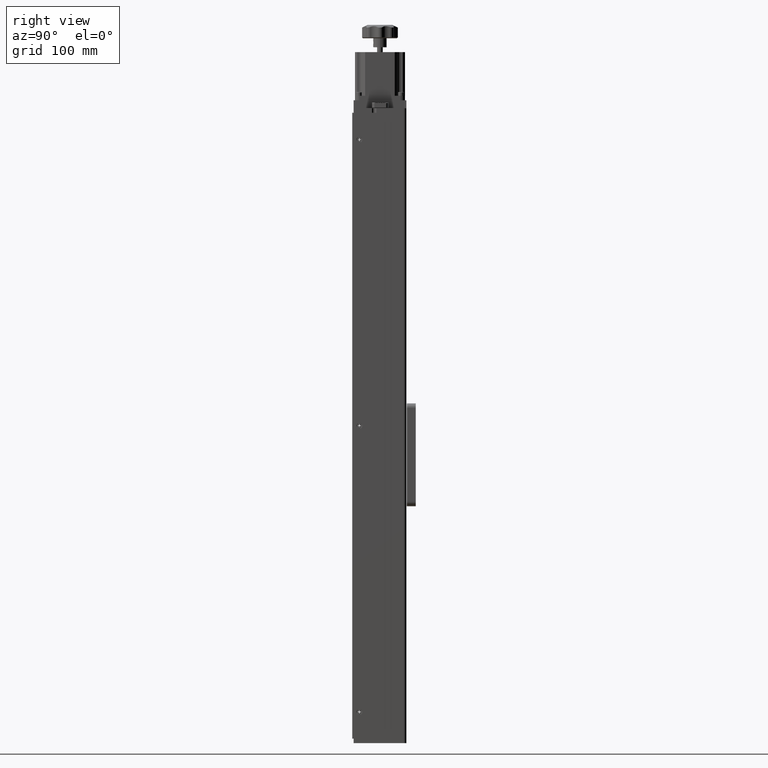
[diagram: clean part render]
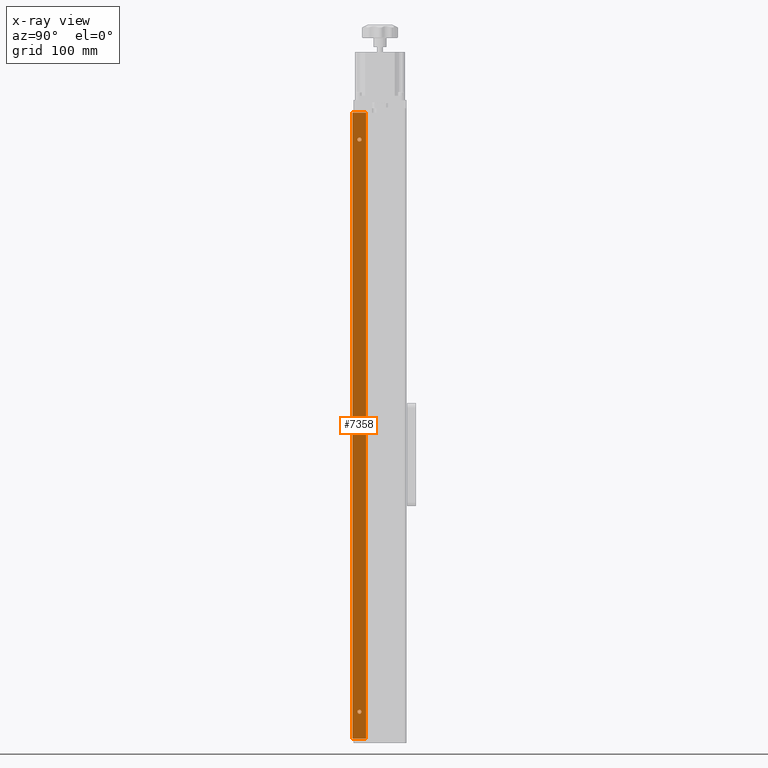
[diagram: x-ray — body ghosted, one internal face saturated and labeled with its STEP entity id]
A machine part, right view, then the same camera in x-ray: the body is ghosted and one INTERNAL B-rep face — a face not visible from any outside direction — is saturated and labeled: STEP entity #7358.
In plain terms, the highlighted planar face has unit normal (1, -0, 0).
Its self-contained STEP definition (entity closure, byte-faithful):
#403 = DIRECTION ( 'NONE',  ( 0.0000000000000000000, 0.0000000000000000000, -1.000000000000000000 ) ) ;
#599 = CARTESIAN_POINT ( 'NONE',  ( -69.61080835603993900, 8.829045197376977700, 350.0000000000000000 ) ) ;
#862 = CARTESIAN_POINT ( 'NONE',  ( -69.61080835603995400, -2.417650620647952700, -319.9999999999999400 ) ) ;
#1049 = ORIENTED_EDGE ( 'NONE', *, *, #5173, .F. ) ;
#1942 = VECTOR ( 'NONE', #27221, 1000.000000000000000 ) ;
#2088 = DIRECTION ( 'NONE',  ( -3.689503073101735200E-032, 1.000000000000000000, 0.0000000000000000000 ) ) ;
#2110 = VECTOR ( 'NONE', #2088, 1000.000000000000000 ) ;
#2127 = CARTESIAN_POINT ( 'NONE',  ( -69.61080835603993900, -10.41765062064795100, -350.0000000000000000 ) ) ;
#2446 = DIRECTION ( 'NONE',  ( 1.000000000000000000, -3.689503073101735200E-032, 0.0000000000000000000 ) ) ;
#2906 = EDGE_LOOP ( 'NONE', ( #14270, #29356, #22356, #1049 ) ) ;
#3548 = EDGE_CURVE ( 'NONE', #4222, #19425, #9068, .T. ) ;
#3998 = VERTEX_POINT ( 'NONE', #10623 ) ;
#4195 = DIRECTION ( 'NONE',  ( 0.0000000000000000000, 0.0000000000000000000, -1.000000000000000000 ) ) ;
#4222 = VERTEX_POINT ( 'NONE', #39719 ) ;
#4723 = EDGE_CURVE ( 'NONE', #33092, #6045, #19828, .T. ) ;
#4727 = CIRCLE ( 'NONE', #34580, 2.250000000000085300 ) ;
#5173 = EDGE_CURVE ( 'NONE', #6045, #14428, #30727, .T. ) ;
#5445 = CARTESIAN_POINT ( 'NONE',  ( -69.61080835603993900, 8.829045197376974100, -350.0000000000000000 ) ) ;
#6045 = VERTEX_POINT ( 'NONE', #7252 ) ;
#6343 = EDGE_LOOP ( 'NONE', ( #26351, #42108 ) ) ;
#6537 = FACE_OUTER_BOUND ( 'NONE', #2906, .T. ) ;
#7252 = CARTESIAN_POINT ( 'NONE',  ( -69.61080835603993900, 5.082349379352006500, -350.0000000000000000 ) ) ;
#7358 = ADVANCED_FACE ( 'NONE', ( #41961, #33108, #15375, #6537 ), #31030, .F. ) ;
#7880 = DIRECTION ( 'NONE',  ( 0.0000000000000000000, 0.0000000000000000000, 1.000000000000000000 ) ) ;
#8000 = CARTESIAN_POINT ( 'NONE',  ( -69.61080835603993900, 8.829045197376974100, -350.0000000000000000 ) ) ;
#8392 = EDGE_CURVE ( 'NONE', #3998, #21134, #14642, .T. ) ;
#8437 = VERTEX_POINT ( 'NONE', #23636 ) ;
#8789 = CARTESIAN_POINT ( 'NONE',  ( -69.61080835603995400, -2.417650620647952700, -319.9999999999999400 ) ) ;
#9001 = ORIENTED_EDGE ( 'NONE', *, *, #20373, .T. ) ;
#9068 = CIRCLE ( 'NONE', #36284, 2.250000000000085300 ) ;
#10623 = CARTESIAN_POINT ( 'NONE',  ( -69.61080835603993900, -2.417650620647952700, -2.250000000000057700 ) ) ;
#11100 = DIRECTION ( 'NONE',  ( 1.000000000000000000, -3.689503073101735200E-032, 0.0000000000000000000 ) ) ;
#11148 = EDGE_LOOP ( 'NONE', ( #9001, #23990 ) ) ;
#11306 = DIRECTION ( 'NONE',  ( 0.0000000000000000000, 0.0000000000000000000, -1.000000000000000000 ) ) ;
#12110 = DIRECTION ( 'NONE',  ( 0.0000000000000000000, 0.0000000000000000000, -1.000000000000000000 ) ) ;
#12355 = EDGE_CURVE ( 'NONE', #8437, #14428, #37398, .T. ) ;
#12696 = CARTESIAN_POINT ( 'NONE',  ( -69.61080835603993900, 5.082349379352008300, 350.0000000000000000 ) ) ;
#13827 = DIRECTION ( 'NONE',  ( 1.000000000000000000, -3.689503073101735200E-032, 0.0000000000000000000 ) ) ;
#14270 = ORIENTED_EDGE ( 'NONE', *, *, #4723, .F. ) ;
#14428 = VERTEX_POINT ( 'NONE', #12696 ) ;
#14642 = CIRCLE ( 'NONE', #20354, 2.250000000000085300 ) ;
#15375 = FACE_BOUND ( 'NONE', #6343, .T. ) ;
#15575 = EDGE_LOOP ( 'NONE', ( #17908, #36966 ) ) ;
#17908 = ORIENTED_EDGE ( 'NONE', *, *, #8392, .T. ) ;
#17926 = CIRCLE ( 'NONE', #22633, 2.250000000000085300 ) ;
#19283 = AXIS2_PLACEMENT_3D ( 'NONE', #862, #24100, #4195 ) ;
#19425 = VERTEX_POINT ( 'NONE', #23903 ) ;
#19828 = LINE ( 'NONE', #5445, #2110 ) ;
#20302 = DIRECTION ( 'NONE',  ( 1.000000000000000000, -3.689503073101735200E-032, 0.0000000000000000000 ) ) ;
#20354 = AXIS2_PLACEMENT_3D ( 'NONE', #40297, #20302, #403 ) ;
#20373 = EDGE_CURVE ( 'NONE', #34632, #22400, #29779, .T. ) ;
#20516 = VECTOR ( 'NONE', #26146, 1000.000000000000000 ) ;
#21134 = VERTEX_POINT ( 'NONE', #25864 ) ;
#21563 = LINE ( 'NONE', #22754, #20516 ) ;
#21837 = VECTOR ( 'NONE', #7880, 1000.000000000000000 ) ;
#22356 = ORIENTED_EDGE ( 'NONE', *, *, #12355, .T. ) ;
#22397 = CARTESIAN_POINT ( 'NONE',  ( -69.61080835603993900, -2.417650620647952700, 319.9999999999999400 ) ) ;
#22400 = VERTEX_POINT ( 'NONE', #37518 ) ;
#22633 = AXIS2_PLACEMENT_3D ( 'NONE', #8789, #32081, #12110 ) ;
#22754 = CARTESIAN_POINT ( 'NONE',  ( -69.61080835603993900, -10.41765062064795100, -350.0000000000000000 ) ) ;
#23636 = CARTESIAN_POINT ( 'NONE',  ( -69.61080835603993900, -10.41765062064795400, 350.0000000000000000 ) ) ;
#23903 = CARTESIAN_POINT ( 'NONE',  ( -69.61080835603993900, -2.417650620647952200, 322.2500000000000600 ) ) ;
#23990 = ORIENTED_EDGE ( 'NONE', *, *, #37374, .T. ) ;
#24100 = DIRECTION ( 'NONE',  ( 1.000000000000000000, -3.689503073101735200E-032, 0.0000000000000000000 ) ) ;
#24476 = EDGE_CURVE ( 'NONE', #19425, #4222, #27822, .T. ) ;
#25765 = DIRECTION ( 'NONE',  ( 0.0000000000000000000, 0.0000000000000000000, -1.000000000000000000 ) ) ;
#25819 = EDGE_CURVE ( 'NONE', #21134, #3998, #4727, .T. ) ;
#25864 = CARTESIAN_POINT ( 'NONE',  ( -69.61080835603993900, -2.417650620647952200, 2.250000000000112800 ) ) ;
#25889 = CARTESIAN_POINT ( 'NONE',  ( -69.61080835603995400, -2.417650620647952700, -322.2500000000000600 ) ) ;
#26146 = DIRECTION ( 'NONE',  ( 0.0000000000000000000, 0.0000000000000000000, -1.000000000000000000 ) ) ;
#26351 = ORIENTED_EDGE ( 'NONE', *, *, #3548, .T. ) ;
#27221 = DIRECTION ( 'NONE',  ( -3.689503073101735200E-032, 1.000000000000000000, 0.0000000000000000000 ) ) ;
#27799 = AXIS2_PLACEMENT_3D ( 'NONE', #22397, #2446, #25765 ) ;
#27822 = CIRCLE ( 'NONE', #27799, 2.250000000000085300 ) ;
#27827 = CARTESIAN_POINT ( 'NONE',  ( -69.61080835603993900, 5.082349379352008300, 350.0000000000000000 ) ) ;
#29356 = ORIENTED_EDGE ( 'NONE', *, *, #30193, .F. ) ;
#29779 = CIRCLE ( 'NONE', #19283, 2.250000000000085300 ) ;
#30193 = EDGE_CURVE ( 'NONE', #8437, #33092, #21563, .T. ) ;
#30727 = LINE ( 'NONE', #27827, #21837 ) ;
#31030 = PLANE ( 'NONE',  #36497 ) ;
#31103 = CARTESIAN_POINT ( 'NONE',  ( -69.61080835603993900, -2.417650620647952700, 319.9999999999999400 ) ) ;
#31307 = DIRECTION ( 'NONE',  ( 1.000000000000000000, -3.689503073101735200E-032, 0.0000000000000000000 ) ) ;
#32081 = DIRECTION ( 'NONE',  ( 1.000000000000000000, -3.689503073101735200E-032, 0.0000000000000000000 ) ) ;
#33092 = VERTEX_POINT ( 'NONE', #2127 ) ;
#33108 = FACE_BOUND ( 'NONE', #15575, .T. ) ;
#33828 = CARTESIAN_POINT ( 'NONE',  ( -69.61080835603993900, -2.417650620647952700, 2.775557561562886300E-014 ) ) ;
#34447 = DIRECTION ( 'NONE',  ( 0.0000000000000000000, 0.0000000000000000000, -1.000000000000000000 ) ) ;
#34580 = AXIS2_PLACEMENT_3D ( 'NONE', #33828, #13827, #37146 ) ;
#34632 = VERTEX_POINT ( 'NONE', #25889 ) ;
#36284 = AXIS2_PLACEMENT_3D ( 'NONE', #31103, #11100, #34447 ) ;
#36497 = AXIS2_PLACEMENT_3D ( 'NONE', #8000, #31307, #11306 ) ;
#36966 = ORIENTED_EDGE ( 'NONE', *, *, #25819, .T. ) ;
#37146 = DIRECTION ( 'NONE',  ( 0.0000000000000000000, 0.0000000000000000000, -1.000000000000000000 ) ) ;
#37374 = EDGE_CURVE ( 'NONE', #22400, #34632, #17926, .T. ) ;
#37398 = LINE ( 'NONE', #599, #1942 ) ;
#37518 = CARTESIAN_POINT ( 'NONE',  ( -69.61080835603995400, -2.417650620647952200, -317.7499999999998900 ) ) ;
#39719 = CARTESIAN_POINT ( 'NONE',  ( -69.61080835603993900, -2.417650620647952700, 317.7499999999998900 ) ) ;
#40297 = CARTESIAN_POINT ( 'NONE',  ( -69.61080835603993900, -2.417650620647952700, 2.775557561562886300E-014 ) ) ;
#41961 = FACE_BOUND ( 'NONE', #11148, .T. ) ;
#42108 = ORIENTED_EDGE ( 'NONE', *, *, #24476, .T. ) ;